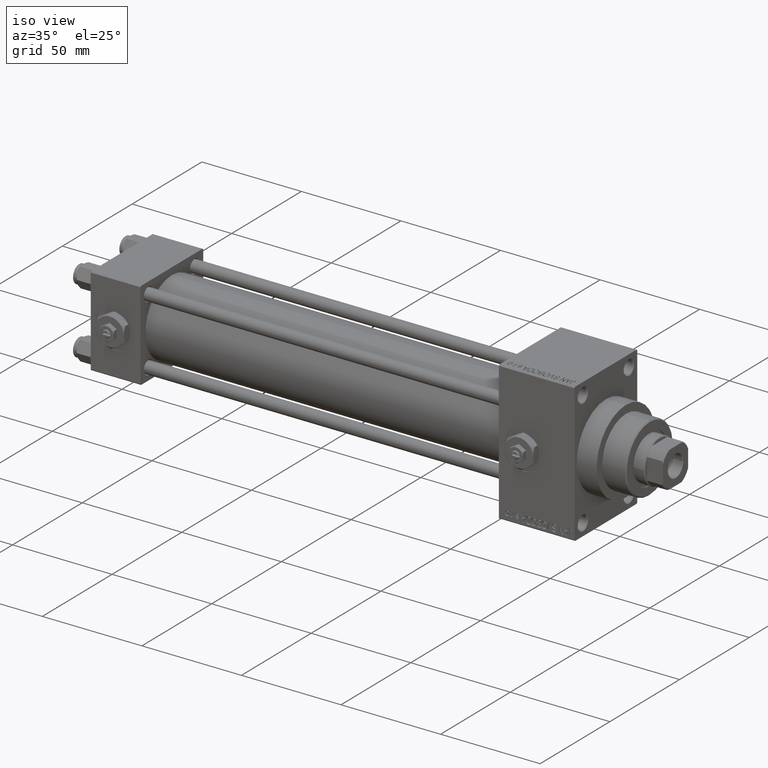
[diagram: clean part render]
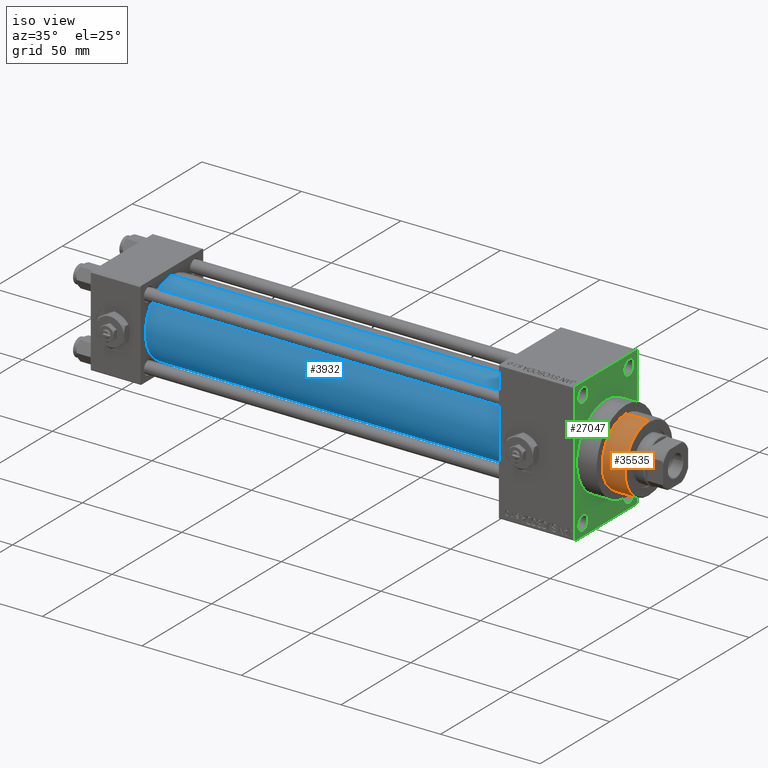
[diagram: same view with three faces highlighted in distinct colors, each labeled with its STEP entity id]
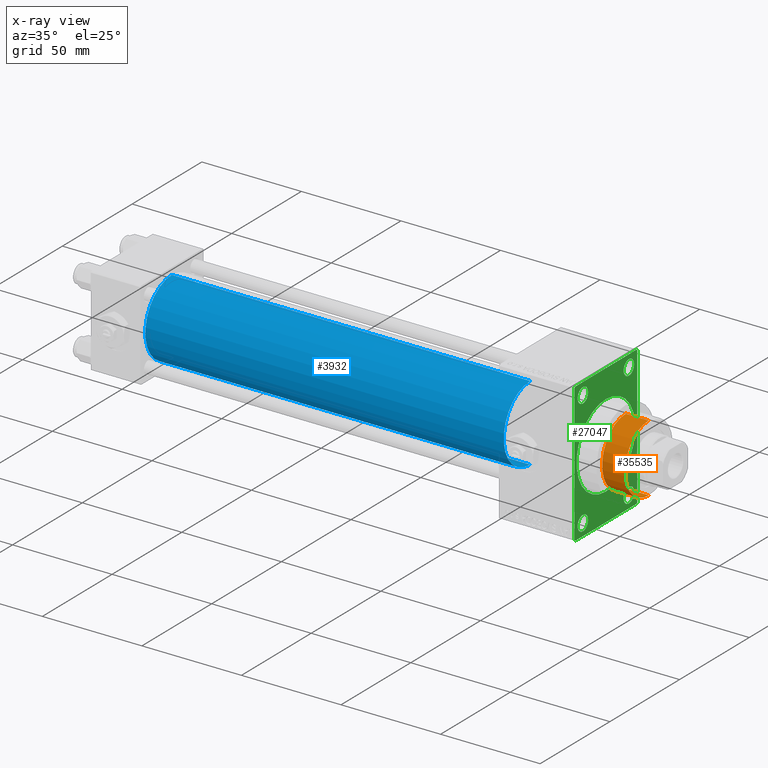
[diagram: x-ray of the same camera — body ghosted, the three highlighted faces saturated]
A machine part, iso view with three faces highlighted in distinct colors.
The next image is the same camera in x-ray (body ghosted, the three faces saturated) — at least one of them is partly hidden behind the body in this view.
Their STEP definitions:

[orange] entity #35535 — the highlighted cylindrical surface (partial cylindrical patch) has radius 17 mm, axis along (-1, 0, 0).
#1080 = AXIS2_PLACEMENT_3D ( 'NONE', #13333, #6624, #40632 ) ;
#1602 = EDGE_LOOP ( 'NONE', ( #17555, #24061, #40649, #43562 ) ) ;
#2458 = CARTESIAN_POINT ( 'NONE',  ( 17.00000000000000000, 2.081899558550500280E-15, 55.26000000000000512 ) ) ;
#5439 = VERTEX_POINT ( 'NONE', #13024 ) ;
#6021 = EDGE_CURVE ( 'NONE', #46878, #38768, #17113, .T. ) ;
#6624 = DIRECTION ( 'NONE',  ( 0.000000000000000000, 0.000000000000000000, 1.000000000000000000 ) ) ;
#6917 = VECTOR ( 'NONE', #24824, 1000.000000000000000 ) ;
#7545 = DIRECTION ( 'NONE',  ( -1.000000000000000000, 0.000000000000000000, 0.000000000000000000 ) ) ;
#12786 = CARTESIAN_POINT ( 'NONE',  ( 0.000000000000000000, 0.000000000000000000, 54.76000000000001222 ) ) ;
#12847 = CYLINDRICAL_SURFACE ( 'NONE', #31988, 17.00000000000000000 ) ;
#12959 = CIRCLE ( 'NONE', #1080, 17.00000000000000000 ) ;
#13024 = CARTESIAN_POINT ( 'NONE',  ( 17.00000000000000000, 2.081899558550500280E-15, 54.76000000000001222 ) ) ;
#13333 = CARTESIAN_POINT ( 'NONE',  ( 0.000000000000000000, 0.000000000000000000, 43.25999999999999801 ) ) ;
#16205 = VERTEX_POINT ( 'NONE', #33500 ) ;
#17096 = LINE ( 'NONE', #2458, #30516 ) ;
#17113 = LINE ( 'NONE', #47175, #6917 ) ;
#17555 = ORIENTED_EDGE ( 'NONE', *, *, #28835, .T. ) ;
#23503 = EDGE_CURVE ( 'NONE', #16205, #38768, #12959, .T. ) ;
#24061 = ORIENTED_EDGE ( 'NONE', *, *, #26551, .T. ) ;
#24824 = DIRECTION ( 'NONE',  ( -0.000000000000000000, -0.000000000000000000, -1.000000000000000000 ) ) ;
#26551 = EDGE_CURVE ( 'NONE', #5439, #16205, #17096, .T. ) ;
#27946 = DIRECTION ( 'NONE',  ( 0.000000000000000000, 0.000000000000000000, -1.000000000000000000 ) ) ;
#28008 = CARTESIAN_POINT ( 'NONE',  ( 0.000000000000000000, 0.000000000000000000, 55.26000000000000512 ) ) ;
#28835 = EDGE_CURVE ( 'NONE', #46878, #5439, #42467, .T. ) ;
#30516 = VECTOR ( 'NONE', #40196, 1000.000000000000000 ) ;
#31988 = AXIS2_PLACEMENT_3D ( 'NONE', #28008, #37334, #7545 ) ;
#33500 = CARTESIAN_POINT ( 'NONE',  ( 17.00000000000000000, 2.081899558550500280E-15, 43.25999999999999801 ) ) ;
#34078 = CARTESIAN_POINT ( 'NONE',  ( -17.00000000000000000, 0.000000000000000000, 54.76000000000001222 ) ) ;
#35535 = ADVANCED_FACE ( 'NONE', ( #46868 ), #12847, .T. ) ;
#36357 = CARTESIAN_POINT ( 'NONE',  ( -17.00000000000000000, 0.000000000000000000, 43.25999999999999801 ) ) ;
#37334 = DIRECTION ( 'NONE',  ( -0.000000000000000000, -0.000000000000000000, -1.000000000000000000 ) ) ;
#38768 = VERTEX_POINT ( 'NONE', #36357 ) ;
#40196 = DIRECTION ( 'NONE',  ( -0.000000000000000000, -0.000000000000000000, -1.000000000000000000 ) ) ;
#40632 = DIRECTION ( 'NONE',  ( 1.000000000000000000, 0.000000000000000000, 0.000000000000000000 ) ) ;
#40649 = ORIENTED_EDGE ( 'NONE', *, *, #23503, .T. ) ;
#42467 = CIRCLE ( 'NONE', #48788, 17.00000000000000000 ) ;
#43091 = DIRECTION ( 'NONE',  ( 1.000000000000000000, 0.000000000000000000, 0.000000000000000000 ) ) ;
#43562 = ORIENTED_EDGE ( 'NONE', *, *, #6021, .F. ) ;
#46868 = FACE_OUTER_BOUND ( 'NONE', #1602, .T. ) ;
#46878 = VERTEX_POINT ( 'NONE', #34078 ) ;
#47175 = CARTESIAN_POINT ( 'NONE',  ( -17.00000000000000000, 0.000000000000000000, 55.26000000000000512 ) ) ;
#48788 = AXIS2_PLACEMENT_3D ( 'NONE', #12786, #27946, #43091 ) ;

[blue] entity #3932 — the highlighted cylindrical surface (partial cylindrical patch) has radius 19 mm, axis along (-1, -0, -0).
#969 = CARTESIAN_POINT ( 'NONE',  ( 24.99999999999999289, -2.602085213965210642E-15, 19.00000000000000000 ) ) ;
#1172 = ORIENTED_EDGE ( 'NONE', *, *, #16884, .F. ) ;
#1256 = DIRECTION ( 'NONE',  ( 0.000000000000000000, 0.000000000000000000, 1.000000000000000000 ) ) ;
#1350 = CIRCLE ( 'NONE', #7676, 19.00000000000000000 ) ;
#2215 = CARTESIAN_POINT ( 'NONE',  ( 205.0000000000000000, -2.752562955852400657E-16, -19.00000000000000000 ) ) ;
#2484 = EDGE_CURVE ( 'NONE', #16681, #44321, #8884, .T. ) ;
#2557 = CARTESIAN_POINT ( 'NONE',  ( 205.0000000000000000, -2.602085213965210642E-15, 0.000000000000000000 ) ) ;
#3065 = DIRECTION ( 'NONE',  ( -1.000000000000000000, -0.000000000000000000, -0.000000000000000000 ) ) ;
#3765 = DIRECTION ( 'NONE',  ( 1.000000000000000000, -0.000000000000000000, 0.000000000000000000 ) ) ;
#3932 = ADVANCED_FACE ( 'NONE', ( #35482 ), #27319, .T. ) ;
#7676 = AXIS2_PLACEMENT_3D ( 'NONE', #37774, #3765, #34042 ) ;
#8141 = AXIS2_PLACEMENT_3D ( 'NONE', #42941, #15626, #1256 ) ;
#8884 = CIRCLE ( 'NONE', #14421, 19.00000000000000000 ) ;
#9573 = CARTESIAN_POINT ( 'NONE',  ( 24.99999999999999289, -2.752562955852400657E-16, -19.00000000000000000 ) ) ;
#10210 = EDGE_CURVE ( 'NONE', #16681, #40431, #48239, .T. ) ;
#13394 = VECTOR ( 'NONE', #3065, 1000.000000000000000 ) ;
#14421 = AXIS2_PLACEMENT_3D ( 'NONE', #2557, #39562, #25387 ) ;
#15626 = DIRECTION ( 'NONE',  ( -1.000000000000000000, -0.000000000000000000, -0.000000000000000000 ) ) ;
#16681 = VERTEX_POINT ( 'NONE', #44255 ) ;
#16884 = EDGE_CURVE ( 'NONE', #44321, #31331, #28085, .T. ) ;
#24847 = DIRECTION ( 'NONE',  ( -1.000000000000000000, -0.000000000000000000, -0.000000000000000000 ) ) ;
#25387 = DIRECTION ( 'NONE',  ( 0.000000000000000000, 0.000000000000000000, -1.000000000000000000 ) ) ;
#27319 = CYLINDRICAL_SURFACE ( 'NONE', #8141, 19.00000000000000000 ) ;
#28085 = LINE ( 'NONE', #43715, #42963 ) ;
#31331 = VERTEX_POINT ( 'NONE', #9573 ) ;
#32274 = ORIENTED_EDGE ( 'NONE', *, *, #2484, .F. ) ;
#34008 = ORIENTED_EDGE ( 'NONE', *, *, #46493, .T. ) ;
#34042 = DIRECTION ( 'NONE',  ( 0.000000000000000000, 0.000000000000000000, 1.000000000000000000 ) ) ;
#35482 = FACE_OUTER_BOUND ( 'NONE', #41970, .T. ) ;
#36086 = ORIENTED_EDGE ( 'NONE', *, *, #10210, .T. ) ;
#37774 = CARTESIAN_POINT ( 'NONE',  ( 24.99999999999999289, -2.602085213965210642E-15, 0.000000000000000000 ) ) ;
#39562 = DIRECTION ( 'NONE',  ( 1.000000000000000000, 0.000000000000000000, 0.000000000000000000 ) ) ;
#40431 = VERTEX_POINT ( 'NONE', #969 ) ;
#41970 = EDGE_LOOP ( 'NONE', ( #1172, #32274, #36086, #34008 ) ) ;
#42941 = CARTESIAN_POINT ( 'NONE',  ( 205.0000000000000000, -2.602085213965210642E-15, 0.000000000000000000 ) ) ;
#42963 = VECTOR ( 'NONE', #24847, 1000.000000000000000 ) ;
#43715 = CARTESIAN_POINT ( 'NONE',  ( 205.0000000000000000, -2.752562955852400657E-16, -19.00000000000000000 ) ) ;
#44039 = CARTESIAN_POINT ( 'NONE',  ( 205.0000000000000000, -2.602085213965210642E-15, 19.00000000000000000 ) ) ;
#44255 = CARTESIAN_POINT ( 'NONE',  ( 205.0000000000000000, -2.602085213965210642E-15, 19.00000000000000000 ) ) ;
#44321 = VERTEX_POINT ( 'NONE', #2215 ) ;
#46493 = EDGE_CURVE ( 'NONE', #40431, #31331, #1350, .T. ) ;
#48239 = LINE ( 'NONE', #44039, #13394 ) ;

[green] entity #27047 — the highlighted planar face has unit normal (-1, 0, 0).
#318 = EDGE_CURVE ( 'NONE', #26024, #31066, #7967, .T. ) ;
#474 = AXIS2_PLACEMENT_3D ( 'NONE', #15648, #10520, #17963 ) ;
#1092 = CARTESIAN_POINT ( 'NONE',  ( 243.0000000000000000, 16.50000000000000000, -28.99999999999999289 ) ) ;
#1134 = DIRECTION ( 'NONE',  ( -0.000000000000000000, 0.000000000000000000, 1.000000000000000000 ) ) ;
#1222 = EDGE_CURVE ( 'NONE', #12802, #33375, #14382, .T. ) ;
#1583 = LINE ( 'NONE', #16944, #8844 ) ;
#1728 = AXIS2_PLACEMENT_3D ( 'NONE', #38327, #4316, #31368 ) ;
#1763 = ORIENTED_EDGE ( 'NONE', *, *, #11160, .T. ) ;
#1820 = EDGE_CURVE ( 'NONE', #32034, #7371, #1583, .T. ) ;
#2067 = DIRECTION ( 'NONE',  ( 0.000000000000000000, 0.000000000000000000, -1.000000000000000000 ) ) ;
#2611 = EDGE_CURVE ( 'NONE', #19559, #32428, #42748, .T. ) ;
#2781 = DIRECTION ( 'NONE',  ( -1.000000000000000000, -0.000000000000000000, -0.000000000000000000 ) ) ;
#3016 = CARTESIAN_POINT ( 'NONE',  ( 243.0000000000000000, -22.00000000000001776, -35.00000000000000000 ) ) ;
#3123 = CIRCLE ( 'NONE', #34064, 3.750000000000173195 ) ;
#3222 = ORIENTED_EDGE ( 'NONE', *, *, #318, .T. ) ;
#3592 = DIRECTION ( 'NONE',  ( 0.000000000000000000, 0.7071067811865474617, -0.7071067811865474617 ) ) ;
#4048 = ORIENTED_EDGE ( 'NONE', *, *, #23900, .T. ) ;
#4316 = DIRECTION ( 'NONE',  ( 1.000000000000000000, 0.000000000000000000, 0.000000000000000000 ) ) ;
#4450 = CARTESIAN_POINT ( 'NONE',  ( 243.0000000000000000, -16.50000000000000000, 32.75000000000017764 ) ) ;
#4608 = FACE_BOUND ( 'NONE', #19733, .T. ) ;
#5088 = FACE_BOUND ( 'NONE', #13108, .T. ) ;
#5436 = CARTESIAN_POINT ( 'NONE',  ( 243.0000000000000000, 22.00000000000002132, -35.00000000000000000 ) ) ;
#6027 = DIRECTION ( 'NONE',  ( 1.000000000000000000, 0.000000000000000000, 0.000000000000000000 ) ) ;
#6253 = CARTESIAN_POINT ( 'NONE',  ( 243.0000000000000000, 16.50000000000000000, 29.00000000000000355 ) ) ;
#6385 = CARTESIAN_POINT ( 'NONE',  ( 243.0000000000000000, -16.50000000000000000, -25.24999999999982592 ) ) ;
#6618 = EDGE_LOOP ( 'NONE', ( #45892, #16104, #13478, #44820, #46047, #35078, #3222, #16557 ) ) ;
#6622 = AXIS2_PLACEMENT_3D ( 'NONE', #1092, #16207, #12493 ) ;
#6706 = DIRECTION ( 'NONE',  ( 0.000000000000000000, 0.000000000000000000, -1.000000000000000000 ) ) ;
#6752 = CARTESIAN_POINT ( 'NONE',  ( 243.0000000000000000, 0.000000000000000000, 0.000000000000000000 ) ) ;
#7126 = VERTEX_POINT ( 'NONE', #31868 ) ;
#7371 = VERTEX_POINT ( 'NONE', #30231 ) ;
#7753 = CARTESIAN_POINT ( 'NONE',  ( 243.0000000000000000, 22.49999999999999645, -34.50000000000002842 ) ) ;
#7967 = LINE ( 'NONE', #38260, #44495 ) ;
#8003 = CARTESIAN_POINT ( 'NONE',  ( 243.0000000000000000, 22.00000000000002132, 35.00000000000000000 ) ) ;
#8517 = CARTESIAN_POINT ( 'NONE',  ( 243.0000000000000000, 22.00000000000002132, 35.00000000000000000 ) ) ;
#8704 = EDGE_CURVE ( 'NONE', #26685, #41892, #32352, .T. ) ;
#8844 = VECTOR ( 'NONE', #2067, 1000.000000000000000 ) ;
#9029 = VERTEX_POINT ( 'NONE', #3016 ) ;
#9601 = DIRECTION ( 'NONE',  ( 0.000000000000000000, 0.000000000000000000, 1.000000000000000000 ) ) ;
#9889 = DIRECTION ( 'NONE',  ( -1.000000000000000000, -0.000000000000000000, -0.000000000000000000 ) ) ;
#10206 = VERTEX_POINT ( 'NONE', #25403 ) ;
#10520 = DIRECTION ( 'NONE',  ( -1.000000000000000000, -0.000000000000000000, -0.000000000000000000 ) ) ;
#10670 = LINE ( 'NONE', #44439, #31890 ) ;
#10953 = AXIS2_PLACEMENT_3D ( 'NONE', #15697, #19929, #24391 ) ;
#11160 = EDGE_CURVE ( 'NONE', #13186, #7126, #3123, .T. ) ;
#11839 = CARTESIAN_POINT ( 'NONE',  ( 243.0000000000000000, -22.00000000000001776, 35.00000000000000000 ) ) ;
#12236 = CARTESIAN_POINT ( 'NONE',  ( 243.0000000000000000, -16.50000000000000000, -28.99999999999999289 ) ) ;
#12493 = DIRECTION ( 'NONE',  ( 0.000000000000000000, 0.000000000000000000, 1.000000000000000000 ) ) ;
#12802 = VERTEX_POINT ( 'NONE', #15878 ) ;
#13108 = EDGE_LOOP ( 'NONE', ( #40311, #28245 ) ) ;
#13186 = VERTEX_POINT ( 'NONE', #17285 ) ;
#13478 = ORIENTED_EDGE ( 'NONE', *, *, #25958, .F. ) ;
#14242 = LINE ( 'NONE', #33368, #17838 ) ;
#14382 = CIRCLE ( 'NONE', #1728, 21.00000000000000000 ) ;
#15109 = VERTEX_POINT ( 'NONE', #45633 ) ;
#15284 = CARTESIAN_POINT ( 'NONE',  ( 243.0000000000000000, 16.50000000000000000, 32.75000000000017764 ) ) ;
#15648 = CARTESIAN_POINT ( 'NONE',  ( 243.0000000000000000, 16.50000000000000000, 29.00000000000000355 ) ) ;
#15697 = CARTESIAN_POINT ( 'NONE',  ( 243.0000000000000000, -16.50000000000000000, 29.00000000000000711 ) ) ;
#15878 = CARTESIAN_POINT ( 'NONE',  ( 243.0000000000000000, 0.000000000000000000, 21.00000000000000000 ) ) ;
#16104 = ORIENTED_EDGE ( 'NONE', *, *, #41999, .T. ) ;
#16207 = DIRECTION ( 'NONE',  ( -1.000000000000000000, -0.000000000000000000, -0.000000000000000000 ) ) ;
#16557 = ORIENTED_EDGE ( 'NONE', *, *, #18837, .T. ) ;
#16944 = CARTESIAN_POINT ( 'NONE',  ( 243.0000000000000000, -22.50000000000000355, 35.00000000000000000 ) ) ;
#17028 = EDGE_CURVE ( 'NONE', #10206, #32428, #10670, .T. ) ;
#17285 = CARTESIAN_POINT ( 'NONE',  ( 243.0000000000000000, 16.50000000000000000, -25.24999999999982592 ) ) ;
#17508 = ORIENTED_EDGE ( 'NONE', *, *, #1222, .F. ) ;
#17806 = DIRECTION ( 'NONE',  ( 0.000000000000000000, 0.000000000000000000, 1.000000000000000000 ) ) ;
#17838 = VECTOR ( 'NONE', #3592, 1000.000000000000114 ) ;
#17963 = DIRECTION ( 'NONE',  ( 0.000000000000000000, 0.000000000000000000, 1.000000000000000000 ) ) ;
#18763 = AXIS2_PLACEMENT_3D ( 'NONE', #6253, #2781, #32569 ) ;
#18800 = CIRCLE ( 'NONE', #48921, 3.750000000000173195 ) ;
#18837 = EDGE_CURVE ( 'NONE', #31066, #32034, #37181, .T. ) ;
#19559 = VERTEX_POINT ( 'NONE', #5436 ) ;
#19733 = EDGE_LOOP ( 'NONE', ( #36279, #41774 ) ) ;
#19929 = DIRECTION ( 'NONE',  ( -1.000000000000000000, -0.000000000000000000, -0.000000000000000000 ) ) ;
#20173 = DIRECTION ( 'NONE',  ( -1.000000000000000000, -0.000000000000000000, -0.000000000000000000 ) ) ;
#20232 = FACE_OUTER_BOUND ( 'NONE', #6618, .T. ) ;
#21897 = DIRECTION ( 'NONE',  ( 0.000000000000000000, 0.000000000000000000, -1.000000000000000000 ) ) ;
#21943 = DIRECTION ( 'NONE',  ( 0.000000000000000000, -1.000000000000000000, 0.000000000000000000 ) ) ;
#22786 = ORIENTED_EDGE ( 'NONE', *, *, #35811, .F. ) ;
#23900 = EDGE_CURVE ( 'NONE', #7126, #13186, #27228, .T. ) ;
#24158 = LINE ( 'NONE', #8517, #24339 ) ;
#24339 = VECTOR ( 'NONE', #38567, 1000.000000000000114 ) ;
#24391 = DIRECTION ( 'NONE',  ( 0.000000000000000000, 0.000000000000000000, 1.000000000000000000 ) ) ;
#25403 = CARTESIAN_POINT ( 'NONE',  ( 243.0000000000000000, 22.49999999999999645, 34.50000000000002842 ) ) ;
#25758 = AXIS2_PLACEMENT_3D ( 'NONE', #32473, #9889, #17806 ) ;
#25958 = EDGE_CURVE ( 'NONE', #19559, #9029, #28005, .T. ) ;
#26024 = VERTEX_POINT ( 'NONE', #8003 ) ;
#26510 = VECTOR ( 'NONE', #45748, 1000.000000000000000 ) ;
#26685 = VERTEX_POINT ( 'NONE', #37444 ) ;
#26900 = EDGE_LOOP ( 'NONE', ( #17508, #22786 ) ) ;
#27047 = ADVANCED_FACE ( 'NONE', ( #27687, #4608, #27926, #5088, #31646, #20232 ), #27203, .F. ) ;
#27203 = PLANE ( 'NONE',  #40013 ) ;
#27228 = CIRCLE ( 'NONE', #6622, 3.750000000000173195 ) ;
#27274 = EDGE_LOOP ( 'NONE', ( #39877, #43226 ) ) ;
#27450 = DIRECTION ( 'NONE',  ( -1.000000000000000000, 0.000000000000000000, -0.000000000000000000 ) ) ;
#27687 = FACE_BOUND ( 'NONE', #27274, .T. ) ;
#27861 = VECTOR ( 'NONE', #29013, 1000.000000000000114 ) ;
#27926 = FACE_BOUND ( 'NONE', #39742, .T. ) ;
#28005 = LINE ( 'NONE', #43149, #26510 ) ;
#28245 = ORIENTED_EDGE ( 'NONE', *, *, #46312, .T. ) ;
#28480 = CARTESIAN_POINT ( 'NONE',  ( 243.0000000000000000, 16.50000000000000000, -28.99999999999999289 ) ) ;
#28611 = VERTEX_POINT ( 'NONE', #15284 ) ;
#29013 = DIRECTION ( 'NONE',  ( -0.000000000000000000, -0.7071067811865474617, -0.7071067811865474617 ) ) ;
#30055 = VERTEX_POINT ( 'NONE', #6385 ) ;
#30231 = CARTESIAN_POINT ( 'NONE',  ( 243.0000000000000000, -22.50000000000000355, -34.50000000000002842 ) ) ;
#30319 = DIRECTION ( 'NONE',  ( 0.000000000000000000, 0.000000000000000000, 1.000000000000000000 ) ) ;
#31066 = VERTEX_POINT ( 'NONE', #11839 ) ;
#31368 = DIRECTION ( 'NONE',  ( 0.000000000000000000, 0.000000000000000000, -1.000000000000000000 ) ) ;
#31646 = FACE_BOUND ( 'NONE', #26900, .T. ) ;
#31868 = CARTESIAN_POINT ( 'NONE',  ( 243.0000000000000000, 16.50000000000000000, -32.75000000000017053 ) ) ;
#31890 = VECTOR ( 'NONE', #6706, 1000.000000000000000 ) ;
#32034 = VERTEX_POINT ( 'NONE', #35447 ) ;
#32352 = CIRCLE ( 'NONE', #10953, 3.750000000000166533 ) ;
#32428 = VERTEX_POINT ( 'NONE', #40342 ) ;
#32473 = CARTESIAN_POINT ( 'NONE',  ( 243.0000000000000000, -16.50000000000000000, 29.00000000000000711 ) ) ;
#32569 = DIRECTION ( 'NONE',  ( 0.000000000000000000, 0.000000000000000000, 1.000000000000000000 ) ) ;
#33368 = CARTESIAN_POINT ( 'NONE',  ( 243.0000000000000000, -22.00000000000002842, -35.00000000000000000 ) ) ;
#33375 = VERTEX_POINT ( 'NONE', #39857 ) ;
#33582 = AXIS2_PLACEMENT_3D ( 'NONE', #6752, #6027, #21897 ) ;
#34064 = AXIS2_PLACEMENT_3D ( 'NONE', #28480, #40381, #9601 ) ;
#34768 = EDGE_CURVE ( 'NONE', #30055, #15109, #35153, .T. ) ;
#34781 = CARTESIAN_POINT ( 'NONE',  ( 243.0000000000000000, -16.50000000000000000, -28.99999999999999289 ) ) ;
#35078 = ORIENTED_EDGE ( 'NONE', *, *, #46197, .T. ) ;
#35153 = CIRCLE ( 'NONE', #35926, 3.750000000000173195 ) ;
#35372 = CARTESIAN_POINT ( 'NONE',  ( 243.0000000000000000, 0.000000000000000000, 0.000000000000000000 ) ) ;
#35447 = CARTESIAN_POINT ( 'NONE',  ( 243.0000000000000000, -22.50000000000000355, 34.50000000000002842 ) ) ;
#35811 = EDGE_CURVE ( 'NONE', #33375, #12802, #45502, .T. ) ;
#35926 = AXIS2_PLACEMENT_3D ( 'NONE', #34781, #38752, #30319 ) ;
#36030 = CIRCLE ( 'NONE', #25758, 3.750000000000166533 ) ;
#36279 = ORIENTED_EDGE ( 'NONE', *, *, #47826, .T. ) ;
#36628 = VECTOR ( 'NONE', #42263, 1000.000000000000114 ) ;
#37181 = LINE ( 'NONE', #41152, #27861 ) ;
#37384 = EDGE_CURVE ( 'NONE', #41892, #26685, #36030, .T. ) ;
#37444 = CARTESIAN_POINT ( 'NONE',  ( 243.0000000000000000, -16.50000000000000000, 25.24999999999984368 ) ) ;
#38260 = CARTESIAN_POINT ( 'NONE',  ( 243.0000000000000000, 22.49999999999999645, 35.00000000000000000 ) ) ;
#38306 = DIRECTION ( 'NONE',  ( 0.000000000000000000, 0.000000000000000000, 1.000000000000000000 ) ) ;
#38327 = CARTESIAN_POINT ( 'NONE',  ( 243.0000000000000000, 0.000000000000000000, 0.000000000000000000 ) ) ;
#38460 = CARTESIAN_POINT ( 'NONE',  ( 243.0000000000000000, 16.50000000000000000, 25.24999999999983658 ) ) ;
#38567 = DIRECTION ( 'NONE',  ( 0.000000000000000000, -0.7071067811865474617, 0.7071067811865474617 ) ) ;
#38752 = DIRECTION ( 'NONE',  ( -1.000000000000000000, -0.000000000000000000, -0.000000000000000000 ) ) ;
#39742 = EDGE_LOOP ( 'NONE', ( #4048, #1763 ) ) ;
#39857 = CARTESIAN_POINT ( 'NONE',  ( 243.0000000000000000, 2.571758278209441661E-15, -21.00000000000000000 ) ) ;
#39877 = ORIENTED_EDGE ( 'NONE', *, *, #8704, .T. ) ;
#40013 = AXIS2_PLACEMENT_3D ( 'NONE', #35372, #27450, #1134 ) ;
#40087 = EDGE_CURVE ( 'NONE', #41961, #28611, #41682, .T. ) ;
#40311 = ORIENTED_EDGE ( 'NONE', *, *, #40087, .T. ) ;
#40342 = CARTESIAN_POINT ( 'NONE',  ( 243.0000000000000000, 22.49999999999999645, -34.50000000000002842 ) ) ;
#40381 = DIRECTION ( 'NONE',  ( -1.000000000000000000, -0.000000000000000000, -0.000000000000000000 ) ) ;
#41152 = CARTESIAN_POINT ( 'NONE',  ( 243.0000000000000000, -22.50000000000000355, 34.50000000000002842 ) ) ;
#41682 = CIRCLE ( 'NONE', #474, 3.750000000000169642 ) ;
#41774 = ORIENTED_EDGE ( 'NONE', *, *, #34768, .T. ) ;
#41892 = VERTEX_POINT ( 'NONE', #4450 ) ;
#41961 = VERTEX_POINT ( 'NONE', #38460 ) ;
#41999 = EDGE_CURVE ( 'NONE', #7371, #9029, #14242, .T. ) ;
#42263 = DIRECTION ( 'NONE',  ( -0.000000000000000000, 0.7071067811865474617, 0.7071067811865474617 ) ) ;
#42748 = LINE ( 'NONE', #7753, #36628 ) ;
#43149 = CARTESIAN_POINT ( 'NONE',  ( 243.0000000000000000, 22.49999999999999645, -35.00000000000000000 ) ) ;
#43226 = ORIENTED_EDGE ( 'NONE', *, *, #37384, .T. ) ;
#44439 = CARTESIAN_POINT ( 'NONE',  ( 243.0000000000000000, 22.49999999999999645, 35.00000000000000000 ) ) ;
#44495 = VECTOR ( 'NONE', #21943, 1000.000000000000000 ) ;
#44820 = ORIENTED_EDGE ( 'NONE', *, *, #2611, .T. ) ;
#45502 = CIRCLE ( 'NONE', #33582, 21.00000000000000000 ) ;
#45633 = CARTESIAN_POINT ( 'NONE',  ( 243.0000000000000000, -16.50000000000000000, -32.75000000000017053 ) ) ;
#45748 = DIRECTION ( 'NONE',  ( 0.000000000000000000, -1.000000000000000000, 0.000000000000000000 ) ) ;
#45892 = ORIENTED_EDGE ( 'NONE', *, *, #1820, .T. ) ;
#46047 = ORIENTED_EDGE ( 'NONE', *, *, #17028, .F. ) ;
#46197 = EDGE_CURVE ( 'NONE', #10206, #26024, #24158, .T. ) ;
#46312 = EDGE_CURVE ( 'NONE', #28611, #41961, #48886, .T. ) ;
#47826 = EDGE_CURVE ( 'NONE', #15109, #30055, #18800, .T. ) ;
#48886 = CIRCLE ( 'NONE', #18763, 3.750000000000169642 ) ;
#48921 = AXIS2_PLACEMENT_3D ( 'NONE', #12236, #20173, #38306 ) ;